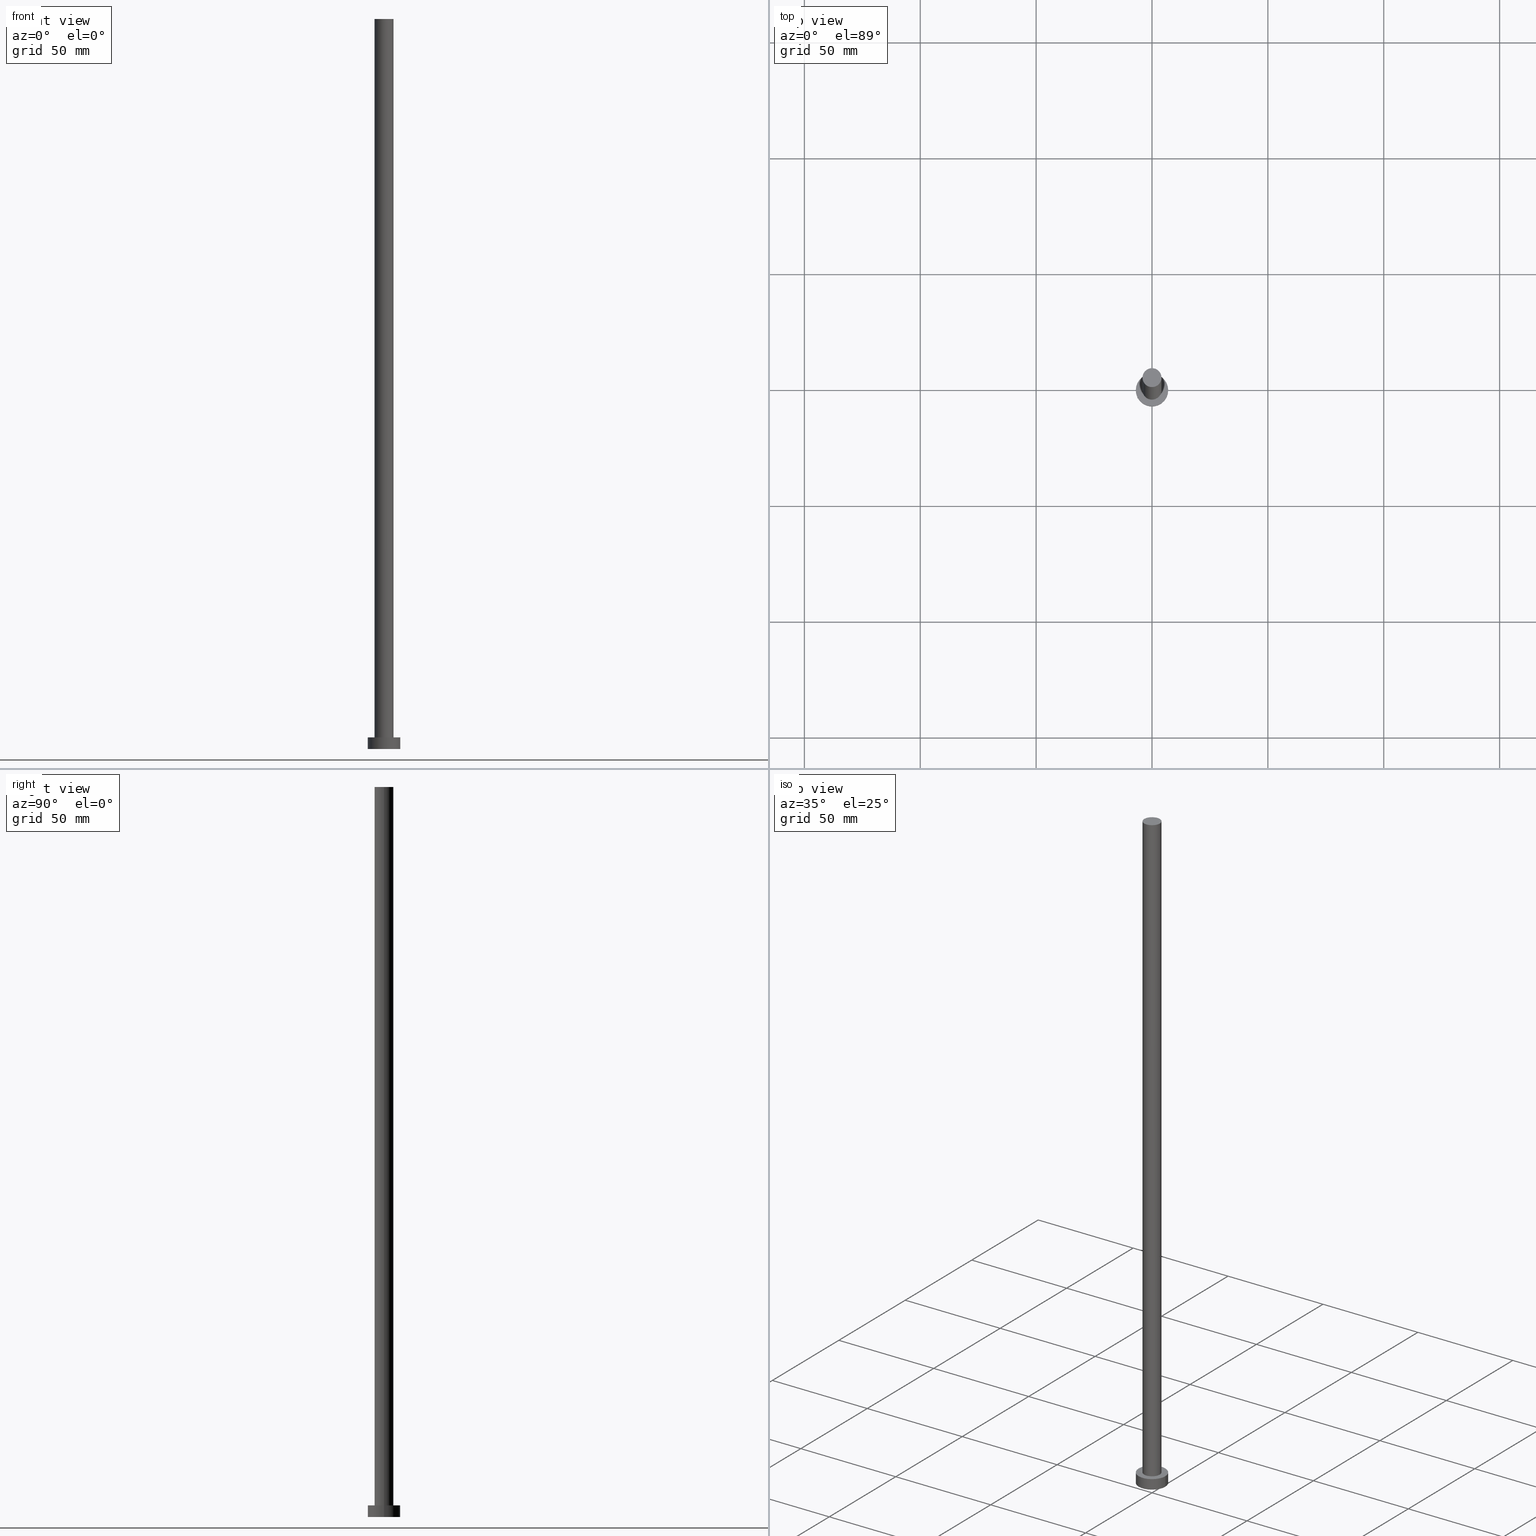
[diagram: canonical four-view strip — front | top / right | iso, engineering-drawing reading convention]
A machine part, canonical four-view strip (front | top / right | iso — engineering-drawing reading convention). The complete STEP part file that produces these views, byte-faithful:
ISO-10303-21;
HEADER;
FILE_DESCRIPTION (( 'STEP AP203' ),
    '1' );
FILE_NAME ('4dee.STEP',
    '2023-02-13T10:52:12',
    ( '' ),
    ( '' ),
    'SwSTEP 2.0',
    'SolidWorks 2019',
    '' );
FILE_SCHEMA (( 'CONFIG_CONTROL_DESIGN' ));
ENDSEC;

DATA;
#1 = PRODUCT_DEFINITION ( 'NEZN�M�', '', #112, #102 ) ;
#2 = LINE ( 'NONE', #61, #76 ) ;
#3 = PLANE ( 'NONE',  #22 ) ;
#4 = APPROVAL_STATUS ( 'not_yet_approved' ) ;
#5 = CIRCLE ( 'NONE', #166, 4.099999999999999645 ) ;
#6 = VERTEX_POINT ( 'NONE', #91 ) ;
#7 = VERTEX_POINT ( 'NONE', #182 ) ;
#8 = CC_DESIGN_DATE_AND_TIME_ASSIGNMENT ( #50, #130, ( #132 ) ) ;
#9 = CARTESIAN_POINT ( 'NONE',  ( 4.099999999999999645, 5.021051876504147385E-16, 315.0000000000000000 ) ) ;
#10 = AXIS2_PLACEMENT_3D ( 'NONE', #83, #229, #52 ) ;
#11 = DATE_TIME_ROLE ( 'creation_date' ) ;
#12 = DIRECTION ( 'NONE',  ( 1.000000000000000000, 0.000000000000000000, 0.000000000000000000 ) ) ;
#13 = APPROVAL_DATE_TIME ( #170, #36 ) ;
#14 = APPROVAL_DATE_TIME ( #249, #177 ) ;
#15 = ORIENTED_EDGE ( 'NONE', *, *, #158, .T. ) ;
#16 = VERTEX_POINT ( 'NONE', #95 ) ;
#17 = CIRCLE ( 'NONE', #79, 4.099999999999999645 ) ;
#18 = DIRECTION ( 'NONE',  ( 1.000000000000000000, 0.000000000000000000, 0.000000000000000000 ) ) ;
#19 = APPLICATION_CONTEXT ( 'configuration controlled 3d designs of mechanical parts and assemblies' ) ;
#20 = DIRECTION ( 'NONE',  ( 0.000000000000000000, 0.000000000000000000, 1.000000000000000000 ) ) ;
#21 = LINE ( 'NONE', #38, #103 ) ;
#22 = AXIS2_PLACEMENT_3D ( 'NONE', #172, #157, #254 ) ;
#23 = ORIENTED_EDGE ( 'NONE', *, *, #203, .F. ) ;
#24 = DIRECTION ( 'NONE',  ( -1.000000000000000000, 0.000000000000000000, 0.000000000000000000 ) ) ;
#25 = ORIENTED_EDGE ( 'NONE', *, *, #158, .F. ) ;
#26 = CLOSED_SHELL ( 'NONE', ( #185, #148, #46, #101, #105, #64, #227 ) ) ;
#27 = LOCAL_TIME ( 11, 52, 12.00000000000000000, #98 ) ;
#28 = CALENDAR_DATE ( 2023, 13, 2 ) ;
#29 = APPLICATION_CONTEXT ( 'configuration controlled 3d designs of mechanical parts and assemblies' ) ;
#30 = PERSON_AND_ORGANIZATION ( #145, #55 ) ;
#31 = APPROVAL_ROLE ( '' ) ;
#32 = DIRECTION ( 'NONE',  ( 0.000000000000000000, 0.000000000000000000, 1.000000000000000000 ) ) ;
#33 = ORIENTED_EDGE ( 'NONE', *, *, #199, .T. ) ;
#34 = APPROVAL_PERSON_ORGANIZATION ( #183, #177, #80 ) ;
#35 = LINE ( 'NONE', #142, #159 ) ;
#36 = APPROVAL ( #58, 'NEUR�EN�' ) ;
#37 = DIRECTION ( 'NONE',  ( 0.000000000000000000, 0.000000000000000000, 1.000000000000000000 ) ) ;
#38 = CARTESIAN_POINT ( 'NONE',  ( -7.000000000000000000, 0.000000000000000000, 5.000000000000000000 ) ) ;
#39 = CIRCLE ( 'NONE', #86, 7.000000000000000000 ) ;
#40 = DIRECTION ( 'NONE',  ( 1.000000000000000000, 0.000000000000000000, 0.000000000000000000 ) ) ;
#41 = DIRECTION ( 'NONE',  ( 0.000000000000000000, 0.000000000000000000, 1.000000000000000000 ) ) ;
#42 = DIRECTION ( 'NONE',  ( -0.000000000000000000, -0.000000000000000000, -1.000000000000000000 ) ) ;
#43 = ORIENTED_EDGE ( 'NONE', *, *, #224, .F. ) ;
#44 = DIRECTION ( 'NONE',  ( -0.000000000000000000, -0.000000000000000000, -1.000000000000000000 ) ) ;
#45 = CIRCLE ( 'NONE', #192, 7.000000000000000000 ) ;
#46 = ADVANCED_FACE ( 'NONE', ( #133 ), #136, .T. ) ;
#47 = DIRECTION ( 'NONE',  ( 1.000000000000000000, 0.000000000000000000, 0.000000000000000000 ) ) ;
#48 = AXIS2_PLACEMENT_3D ( 'NONE', #73, #147, #225 ) ;
#49 = AXIS2_PLACEMENT_3D ( 'NONE', #213, #20, #18 ) ;
#50 = DATE_AND_TIME ( #28, #27 ) ;
#51 = DATE_AND_TIME ( #231, #244 ) ;
#52 = DIRECTION ( 'NONE',  ( 1.000000000000000000, 0.000000000000000000, -0.000000000000000000 ) ) ;
#53 = DIRECTION ( 'NONE',  ( 1.000000000000000000, 0.000000000000000000, -0.000000000000000000 ) ) ;
#54 = SHAPE_DEFINITION_REPRESENTATION ( #174, #57 ) ;
#55 = ORGANIZATION ( 'NEUR�EN�', 'NEUR�EN�', '' ) ;
#56 =( NAMED_UNIT ( * ) SI_UNIT ( $, .STERADIAN. ) SOLID_ANGLE_UNIT ( ) );
#57 = ADVANCED_BREP_SHAPE_REPRESENTATION ( '4dee', ( #255, #139 ), #154 ) ;
#58 = APPROVAL_STATUS ( 'not_yet_approved' ) ;
#59 = ORIENTED_EDGE ( 'NONE', *, *, #203, .T. ) ;
#60 = VERTEX_POINT ( 'NONE', #186 ) ;
#61 = CARTESIAN_POINT ( 'NONE',  ( -4.099999999999999645, 0.000000000000000000, 315.0000000000000000 ) ) ;
#62 = CIRCLE ( 'NONE', #247, 4.099999999999999645 ) ;
#63 = LOCAL_TIME ( 11, 52, 12.00000000000000000, #175 ) ;
#64 = ADVANCED_FACE ( 'NONE', ( #184 ), #81, .T. ) ;
#65 = EDGE_LOOP ( 'NONE', ( #23, #124 ) ) ;
#66 = APPLICATION_PROTOCOL_DEFINITION ( 'international standard', 'config_control_design', 1994, #29 ) ;
#67 = CARTESIAN_POINT ( 'NONE',  ( 0.000000000000000000, 0.000000000000000000, 315.0000000000000000 ) ) ;
#68 = ORIENTED_EDGE ( 'NONE', *, *, #199, .F. ) ;
#69 = PERSON_AND_ORGANIZATION_ROLE ( 'creator' ) ;
#70 = APPROVAL ( #121, 'NEUR�EN�' ) ;
#71 = PRODUCT ( '4dee', '4dee', '', ( #181 ) ) ;
#72 = ORIENTED_EDGE ( 'NONE', *, *, #234, .F. ) ;
#73 = CARTESIAN_POINT ( 'NONE',  ( 0.000000000000000000, 0.000000000000000000, 5.000000000000000000 ) ) ;
#74 = DIRECTION ( 'NONE',  ( -0.000000000000000000, -0.000000000000000000, -1.000000000000000000 ) ) ;
#75 = DIRECTION ( 'NONE',  ( -0.000000000000000000, -0.000000000000000000, -1.000000000000000000 ) ) ;
#76 = VECTOR ( 'NONE', #89, 1000.000000000000000 ) ;
#77 = FACE_OUTER_BOUND ( 'NONE', #222, .T. ) ;
#78 = CC_DESIGN_PERSON_AND_ORGANIZATION_ASSIGNMENT ( #151, #200, ( #71 ) ) ;
#79 = AXIS2_PLACEMENT_3D ( 'NONE', #232, #211, #47 ) ;
#80 = APPROVAL_ROLE ( '' ) ;
#81 = CYLINDRICAL_SURFACE ( 'NONE', #171, 4.099999999999999645 ) ;
#82 = ORIENTED_EDGE ( 'NONE', *, *, #143, .T. ) ;
#83 = CARTESIAN_POINT ( 'NONE',  ( 0.000000000000000000, 0.000000000000000000, 5.000000000000000000 ) ) ;
#84 = FACE_OUTER_BOUND ( 'NONE', #201, .T. ) ;
#85 = AXIS2_PLACEMENT_3D ( 'NONE', #137, #220, #162 ) ;
#86 = AXIS2_PLACEMENT_3D ( 'NONE', #238, #41, #251 ) ;
#87 = DIRECTION ( 'NONE',  ( 1.000000000000000000, 0.000000000000000000, 0.000000000000000000 ) ) ;
#88 = DIRECTION ( 'NONE',  ( 1.000000000000000000, 0.000000000000000000, 0.000000000000000000 ) ) ;
#89 = DIRECTION ( 'NONE',  ( -0.000000000000000000, -0.000000000000000000, -1.000000000000000000 ) ) ;
#90 = ORIENTED_EDGE ( 'NONE', *, *, #150, .F. ) ;
#91 = CARTESIAN_POINT ( 'NONE',  ( -7.000000000000000000, 0.000000000000000000, 0.000000000000000000 ) ) ;
#92 = CC_DESIGN_PERSON_AND_ORGANIZATION_ASSIGNMENT ( #115, #202, ( #132 ) ) ;
#93 = LOCAL_TIME ( 11, 52, 12.00000000000000000, #161 ) ;
#94 = VERTEX_POINT ( 'NONE', #9 ) ;
#95 = CARTESIAN_POINT ( 'NONE',  ( -4.099999999999999645, 0.000000000000000000, 5.000000000000000000 ) ) ;
#96 = AXIS2_PLACEMENT_3D ( 'NONE', #179, #42, #128 ) ;
#97 = ORIENTED_EDGE ( 'NONE', *, *, #187, .F. ) ;
#98 = COORDINATED_UNIVERSAL_TIME_OFFSET ( 1, 0, .AHEAD. ) ;
#99 = CC_DESIGN_DATE_AND_TIME_ASSIGNMENT ( #51, #11, ( #1 ) ) ;
#100 = CARTESIAN_POINT ( 'NONE',  ( 4.099999999999999645, 5.021051876504147385E-16, 315.0000000000000000 ) ) ;
#101 = ADVANCED_FACE ( 'NONE', ( #188, #168 ), #144, .T. ) ;
#102 = DESIGN_CONTEXT ( 'detailed design', #29, 'design' ) ;
#103 = VECTOR ( 'NONE', #75, 1000.000000000000000 ) ;
#104 = CYLINDRICAL_SURFACE ( 'NONE', #48, 7.000000000000000000 ) ;
#105 = ADVANCED_FACE ( 'NONE', ( #250 ), #169, .F. ) ;
#106 = DIRECTION ( 'NONE',  ( 0.000000000000000000, 0.000000000000000000, 1.000000000000000000 ) ) ;
#107 = FACE_OUTER_BOUND ( 'NONE', #155, .T. ) ;
#108 = CARTESIAN_POINT ( 'NONE',  ( 0.000000000000000000, 0.000000000000000000, 315.0000000000000000 ) ) ;
#109 = EDGE_CURVE ( 'NONE', #7, #60, #35, .T. ) ;
#110 = CARTESIAN_POINT ( 'NONE',  ( 0.000000000000000000, 0.000000000000000000, 5.000000000000000000 ) ) ;
#111 = DIRECTION ( 'NONE',  ( 1.000000000000000000, 0.000000000000000000, 0.000000000000000000 ) ) ;
#112 = PRODUCT_DEFINITION_FORMATION_WITH_SPECIFIED_SOURCE ( 'LIBOVOLN�', '', #71, .NOT_KNOWN. ) ;
#113 = CIRCLE ( 'NONE', #49, 7.000000000000000000 ) ;
#114 = ORIENTED_EDGE ( 'NONE', *, *, #109, .T. ) ;
#115 = PERSON_AND_ORGANIZATION ( #145, #55 ) ;
#116 = COORDINATED_UNIVERSAL_TIME_OFFSET ( 1, 0, .AHEAD. ) ;
#117 = LINE ( 'NONE', #100, #208 ) ;
#118 = EDGE_LOOP ( 'NONE', ( #25, #90, #198, #59 ) ) ;
#119 = CC_DESIGN_PERSON_AND_ORGANIZATION_ASSIGNMENT ( #146, #205, ( #1 ) ) ;
#120 = DIRECTION ( 'NONE',  ( -0.000000000000000000, -0.000000000000000000, -1.000000000000000000 ) ) ;
#121 = APPROVAL_STATUS ( 'not_yet_approved' ) ;
#122 = CARTESIAN_POINT ( 'NONE',  ( 0.000000000000000000, 0.000000000000000000, 0.000000000000000000 ) ) ;
#123 = PERSON_AND_ORGANIZATION ( #145, #55 ) ;
#124 = ORIENTED_EDGE ( 'NONE', *, *, #127, .F. ) ;
#125 = EDGE_LOOP ( 'NONE', ( #135, #43, #241, #33 ) ) ;
#126 = APPROVAL_ROLE ( '' ) ;
#127 = EDGE_CURVE ( 'NONE', #242, #16, #62, .T. ) ;
#128 = DIRECTION ( 'NONE',  ( -1.000000000000000000, 0.000000000000000000, 0.000000000000000000 ) ) ;
#129 =( NAMED_UNIT ( * ) PLANE_ANGLE_UNIT ( ) SI_UNIT ( $, .RADIAN. ) );
#130 = DATE_TIME_ROLE ( 'classification_date' ) ;
#131 = CYLINDRICAL_SURFACE ( 'NONE', #96, 4.099999999999999645 ) ;
#132 = SECURITY_CLASSIFICATION ( '', '', #226 ) ;
#133 = FACE_OUTER_BOUND ( 'NONE', #125, .T. ) ;
#134 = CC_DESIGN_PERSON_AND_ORGANIZATION_ASSIGNMENT ( #123, #223, ( #112 ) ) ;
#135 = ORIENTED_EDGE ( 'NONE', *, *, #109, .F. ) ;
#136 = CYLINDRICAL_SURFACE ( 'NONE', #85, 7.000000000000000000 ) ;
#137 = CARTESIAN_POINT ( 'NONE',  ( 0.000000000000000000, 0.000000000000000000, 5.000000000000000000 ) ) ;
#138 = ORIENTED_EDGE ( 'NONE', *, *, #143, .F. ) ;
#139 = AXIS2_PLACEMENT_3D ( 'NONE', #235, #37, #87 ) ;
#140 = ORIENTED_EDGE ( 'NONE', *, *, #234, .T. ) ;
#141 = ORIENTED_EDGE ( 'NONE', *, *, #187, .T. ) ;
#142 = CARTESIAN_POINT ( 'NONE',  ( 7.000000000000000000, 8.572527594031473190E-16, 5.000000000000000000 ) ) ;
#143 = EDGE_CURVE ( 'NONE', #60, #6, #45, .T. ) ;
#144 = PLANE ( 'NONE',  #10 ) ;
#145 = PERSON ( 'NEUR�EN�', 'NEUR�EN�', 'NEUR�EN�', ('NEUR�EN�'), ('NEUR�EN�'), ('NEUR�EN�') ) ;
#146 = PERSON_AND_ORGANIZATION ( #145, #55 ) ;
#147 = DIRECTION ( 'NONE',  ( -0.000000000000000000, -0.000000000000000000, -1.000000000000000000 ) ) ;
#148 = ADVANCED_FACE ( 'NONE', ( #84 ), #104, .T. ) ;
#149 = AXIS2_PLACEMENT_3D ( 'NONE', #110, #106, #88 ) ;
#150 = EDGE_CURVE ( 'NONE', #163, #94, #17, .T. ) ;
#151 = PERSON_AND_ORGANIZATION ( #145, #55 ) ;
#152 =( LENGTH_UNIT ( ) NAMED_UNIT ( * ) SI_UNIT ( .MILLI., .METRE. ) );
#153 = AXIS2_PLACEMENT_3D ( 'NONE', #122, #228, #53 ) ;
#154 =( GEOMETRIC_REPRESENTATION_CONTEXT ( 3 ) GLOBAL_UNCERTAINTY_ASSIGNED_CONTEXT ( ( #219 ) ) GLOBAL_UNIT_ASSIGNED_CONTEXT ( ( #152, #129, #56 ) ) REPRESENTATION_CONTEXT ( 'NONE', 'WORKASPACE' ) );
#155 = EDGE_LOOP ( 'NONE', ( #97, #15, #216, #164 ) ) ;
#156 = CARTESIAN_POINT ( 'NONE',  ( -7.000000000000000000, 0.000000000000000000, 5.000000000000000000 ) ) ;
#157 = DIRECTION ( 'NONE',  ( 0.000000000000000000, 0.000000000000000000, 1.000000000000000000 ) ) ;
#158 = EDGE_CURVE ( 'NONE', #94, #242, #117, .T. ) ;
#159 = VECTOR ( 'NONE', #120, 1000.000000000000000 ) ;
#160 = CIRCLE ( 'NONE', #149, 7.000000000000000000 ) ;
#161 = COORDINATED_UNIVERSAL_TIME_OFFSET ( 1, 0, .AHEAD. ) ;
#162 = DIRECTION ( 'NONE',  ( -1.000000000000000000, 0.000000000000000000, 0.000000000000000000 ) ) ;
#163 = VERTEX_POINT ( 'NONE', #195 ) ;
#164 = ORIENTED_EDGE ( 'NONE', *, *, #191, .F. ) ;
#165 = ORIENTED_EDGE ( 'NONE', *, *, #224, .T. ) ;
#166 = AXIS2_PLACEMENT_3D ( 'NONE', #108, #215, #40 ) ;
#167 = APPROVAL_DATE_TIME ( #189, #70 ) ;
#168 = FACE_OUTER_BOUND ( 'NONE', #243, .T. ) ;
#169 = PLANE ( 'NONE',  #153 ) ;
#170 = DATE_AND_TIME ( #214, #63 ) ;
#171 = AXIS2_PLACEMENT_3D ( 'NONE', #67, #44, #24 ) ;
#172 = CARTESIAN_POINT ( 'NONE',  ( 0.000000000000000000, 0.000000000000000000, 315.0000000000000000 ) ) ;
#173 = APPROVAL_PERSON_ORGANIZATION ( #237, #36, #126 ) ;
#174 = PRODUCT_DEFINITION_SHAPE ( 'NONE', 'NONE',  #1 ) ;
#175 = COORDINATED_UNIVERSAL_TIME_OFFSET ( 1, 0, .AHEAD. ) ;
#176 = APPLICATION_PROTOCOL_DEFINITION ( 'international standard', 'config_control_design', 1994, #19 ) ;
#177 = APPROVAL ( #4, 'NEUR�EN�' ) ;
#178 = CARTESIAN_POINT ( 'NONE',  ( 4.099999999999999645, 5.021051876504147385E-16, 5.000000000000000000 ) ) ;
#179 = CARTESIAN_POINT ( 'NONE',  ( 0.000000000000000000, 0.000000000000000000, 315.0000000000000000 ) ) ;
#180 = ORIENTED_EDGE ( 'NONE', *, *, #233, .F. ) ;
#181 = MECHANICAL_CONTEXT ( 'NONE', #19, 'mechanical' ) ;
#182 = CARTESIAN_POINT ( 'NONE',  ( 7.000000000000000000, 8.572527594031473190E-16, 5.000000000000000000 ) ) ;
#183 = PERSON_AND_ORGANIZATION ( #145, #55 ) ;
#184 = FACE_OUTER_BOUND ( 'NONE', #118, .T. ) ;
#185 = ADVANCED_FACE ( 'NONE', ( #107 ), #131, .T. ) ;
#186 = CARTESIAN_POINT ( 'NONE',  ( 7.000000000000000000, 8.572527594031473190E-16, 0.000000000000000000 ) ) ;
#187 = EDGE_CURVE ( 'NONE', #94, #163, #5, .T. ) ;
#188 = FACE_BOUND ( 'NONE', #65, .T. ) ;
#189 = DATE_AND_TIME ( #204, #217 ) ;
#190 = APPROVAL_PERSON_ORGANIZATION ( #30, #70, #31 ) ;
#191 = EDGE_CURVE ( 'NONE', #163, #16, #2, .T. ) ;
#192 = AXIS2_PLACEMENT_3D ( 'NONE', #230, #32, #12 ) ;
#193 = PERSON_AND_ORGANIZATION ( #145, #55 ) ;
#194 = CC_DESIGN_PERSON_AND_ORGANIZATION_ASSIGNMENT ( #193, #69, ( #112 ) ) ;
#195 = CARTESIAN_POINT ( 'NONE',  ( -4.099999999999999645, 0.000000000000000000, 315.0000000000000000 ) ) ;
#196 = PRODUCT_RELATED_PRODUCT_CATEGORY ( 'detail', '', ( #71 ) ) ;
#197 = CARTESIAN_POINT ( 'NONE',  ( 0.000000000000000000, 0.000000000000000000, 5.000000000000000000 ) ) ;
#198 = ORIENTED_EDGE ( 'NONE', *, *, #191, .T. ) ;
#199 = EDGE_CURVE ( 'NONE', #6, #60, #39, .T. ) ;
#200 = PERSON_AND_ORGANIZATION_ROLE ( 'design_owner' ) ;
#201 = EDGE_LOOP ( 'NONE', ( #72, #114, #82, #180 ) ) ;
#202 = PERSON_AND_ORGANIZATION_ROLE ( 'classification_officer' ) ;
#203 = EDGE_CURVE ( 'NONE', #16, #242, #236, .T. ) ;
#204 = CALENDAR_DATE ( 2023, 13, 2 ) ;
#205 = PERSON_AND_ORGANIZATION_ROLE ( 'creator' ) ;
#206 = CARTESIAN_POINT ( 'NONE',  ( 0.000000000000000000, 0.000000000000000000, 5.000000000000000000 ) ) ;
#207 = DIRECTION ( 'NONE',  ( 1.000000000000000000, 0.000000000000000000, 0.000000000000000000 ) ) ;
#208 = VECTOR ( 'NONE', #74, 1000.000000000000000 ) ;
#209 = DIRECTION ( 'NONE',  ( 0.000000000000000000, 0.000000000000000000, 1.000000000000000000 ) ) ;
#210 = CC_DESIGN_APPROVAL ( #177, ( #1 ) ) ;
#211 = DIRECTION ( 'NONE',  ( 0.000000000000000000, 0.000000000000000000, 1.000000000000000000 ) ) ;
#212 = DIRECTION ( 'NONE',  ( 0.000000000000000000, 0.000000000000000000, 1.000000000000000000 ) ) ;
#213 = CARTESIAN_POINT ( 'NONE',  ( 0.000000000000000000, 0.000000000000000000, 5.000000000000000000 ) ) ;
#214 = CALENDAR_DATE ( 2023, 13, 2 ) ;
#215 = DIRECTION ( 'NONE',  ( 0.000000000000000000, 0.000000000000000000, 1.000000000000000000 ) ) ;
#216 = ORIENTED_EDGE ( 'NONE', *, *, #127, .T. ) ;
#217 = LOCAL_TIME ( 11, 52, 12.00000000000000000, #116 ) ;
#218 = EDGE_LOOP ( 'NONE', ( #68, #138 ) ) ;
#219 = UNCERTAINTY_MEASURE_WITH_UNIT (LENGTH_MEASURE( 1.000000000000000082E-05 ), #152, 'distance_accuracy_value', 'NONE');
#220 = DIRECTION ( 'NONE',  ( -0.000000000000000000, -0.000000000000000000, -1.000000000000000000 ) ) ;
#221 = AXIS2_PLACEMENT_3D ( 'NONE', #197, #212, #111 ) ;
#222 = EDGE_LOOP ( 'NONE', ( #245, #141 ) ) ;
#223 = PERSON_AND_ORGANIZATION_ROLE ( 'design_supplier' ) ;
#224 = EDGE_CURVE ( 'NONE', #240, #7, #160, .T. ) ;
#225 = DIRECTION ( 'NONE',  ( -1.000000000000000000, 0.000000000000000000, 0.000000000000000000 ) ) ;
#226 = SECURITY_CLASSIFICATION_LEVEL ( 'unclassified' ) ;
#227 = ADVANCED_FACE ( 'NONE', ( #77 ), #3, .T. ) ;
#228 = DIRECTION ( 'NONE',  ( 0.000000000000000000, 0.000000000000000000, 1.000000000000000000 ) ) ;
#229 = DIRECTION ( 'NONE',  ( 0.000000000000000000, 0.000000000000000000, 1.000000000000000000 ) ) ;
#230 = CARTESIAN_POINT ( 'NONE',  ( 0.000000000000000000, 0.000000000000000000, 0.000000000000000000 ) ) ;
#231 = CALENDAR_DATE ( 2023, 13, 2 ) ;
#232 = CARTESIAN_POINT ( 'NONE',  ( 0.000000000000000000, 0.000000000000000000, 315.0000000000000000 ) ) ;
#233 = EDGE_CURVE ( 'NONE', #240, #6, #21, .T. ) ;
#234 = EDGE_CURVE ( 'NONE', #7, #240, #113, .T. ) ;
#235 = CARTESIAN_POINT ( 'NONE',  ( 0.000000000000000000, 0.000000000000000000, 0.000000000000000000 ) ) ;
#236 = CIRCLE ( 'NONE', #221, 4.099999999999999645 ) ;
#237 = PERSON_AND_ORGANIZATION ( #145, #55 ) ;
#238 = CARTESIAN_POINT ( 'NONE',  ( 0.000000000000000000, 0.000000000000000000, 0.000000000000000000 ) ) ;
#239 = CC_DESIGN_APPROVAL ( #36, ( #132 ) ) ;
#240 = VERTEX_POINT ( 'NONE', #156 ) ;
#241 = ORIENTED_EDGE ( 'NONE', *, *, #233, .T. ) ;
#242 = VERTEX_POINT ( 'NONE', #178 ) ;
#243 = EDGE_LOOP ( 'NONE', ( #165, #140 ) ) ;
#244 = LOCAL_TIME ( 11, 52, 12.00000000000000000, #246 ) ;
#245 = ORIENTED_EDGE ( 'NONE', *, *, #150, .T. ) ;
#246 = COORDINATED_UNIVERSAL_TIME_OFFSET ( 1, 0, .AHEAD. ) ;
#247 = AXIS2_PLACEMENT_3D ( 'NONE', #206, #209, #207 ) ;
#248 = CALENDAR_DATE ( 2023, 13, 2 ) ;
#249 = DATE_AND_TIME ( #248, #93 ) ;
#250 = FACE_OUTER_BOUND ( 'NONE', #218, .T. ) ;
#251 = DIRECTION ( 'NONE',  ( 1.000000000000000000, 0.000000000000000000, 0.000000000000000000 ) ) ;
#252 = CC_DESIGN_APPROVAL ( #70, ( #112 ) ) ;
#253 = CC_DESIGN_SECURITY_CLASSIFICATION ( #132, ( #112 ) ) ;
#254 = DIRECTION ( 'NONE',  ( 1.000000000000000000, 0.000000000000000000, -0.000000000000000000 ) ) ;
#255 = MANIFOLD_SOLID_BREP ( 'P�idat vysunut�m3', #26 ) ;
ENDSEC;
END-ISO-10303-21;
